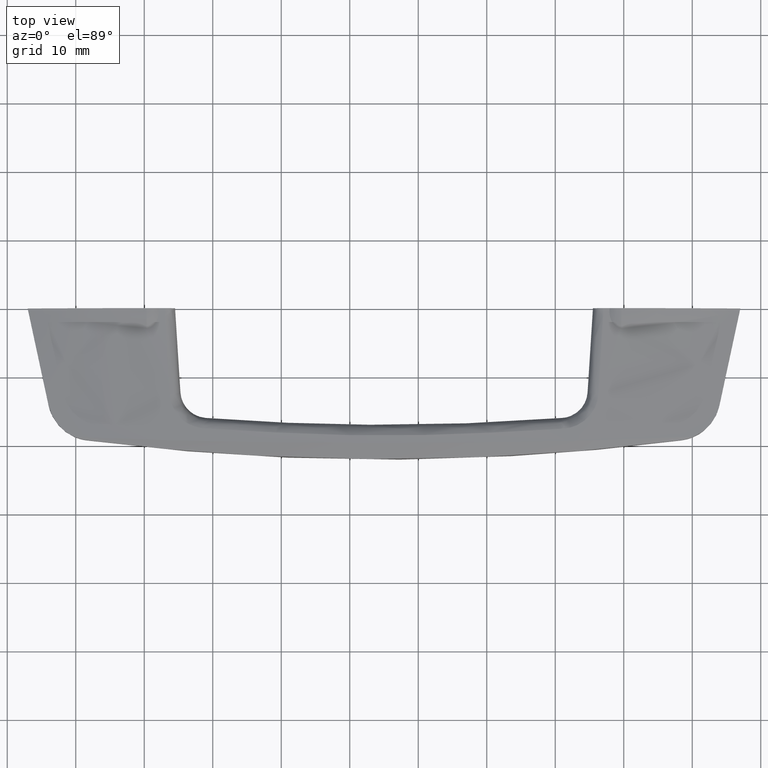
[diagram: clean part render]
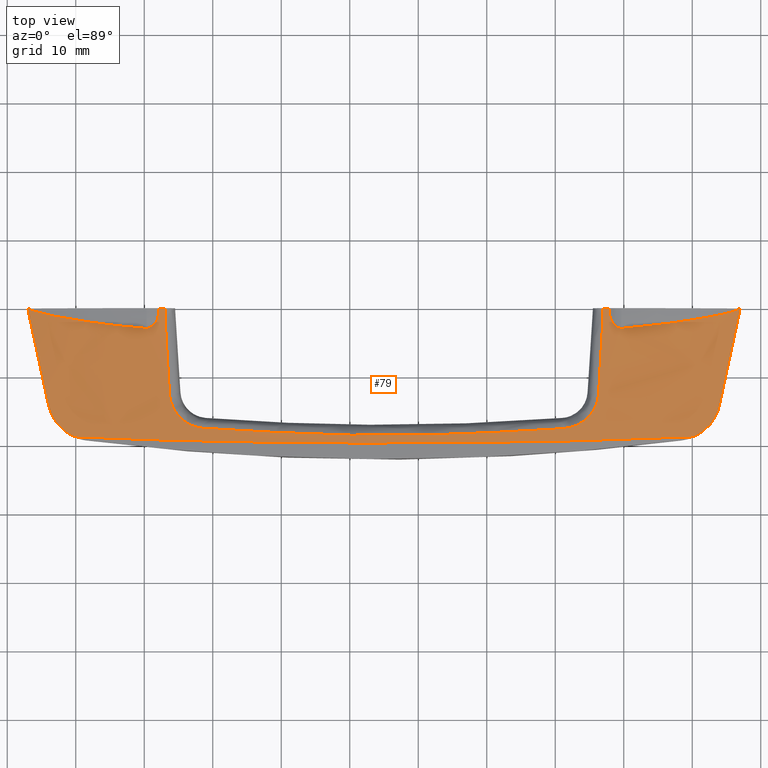
[diagram: same view with one face highlighted and labeled with its STEP entity id]
A machine part, top view. The second image highlights one B-rep face of the part: STEP entity #79.
In plain terms, the highlighted face is a freeform B-spline surface patch.
Its self-contained STEP definition (entity closure, byte-faithful):
#79=ADVANCED_FACE('',(#479),#478,.F.);
#478=( BOUNDED_SURFACE() B_SPLINE_SURFACE( 3,3,((#1942,#1943,#1944,#1945,#1946),(#1947,#1948,#1949,#1950,#1951),(#1952,#1953,#1954,#1955,#1956),(#1957,#1958,#1959,#1960,#1961),(#1962,#1963,#1964,#1965,#1966),(#1967,#1968,#1969,#1970,#1971),(#1972,#1973,#1974,#1975,#1976),(#1977,#1978,#1979,#1980,#1981),(#1982,#1983,#1984,#1985,#1986),(#1987,#1988,#1989,#1990,#1991),(#1992,#1993,#1994,#1995,#1996),(#1997,#1998,#1999,#2000,#2001),(#2002,#2003,#2004,#2005,#2006)), .UNSPECIFIED.,.F.,.F.,.F.) B_SPLINE_SURFACE_WITH_KNOTS((4,1,1,2,1,2,1,1,4),(4,1,4),(0.00000000000E+00,5.81322087955E-01,1.17760890774E+01,2.29708560668E+01,5.87135128041E+01,9.44561695414E+01,1.05650955787E+02,1.16845742032E+02,1.17427064366E+02),(0.00000000000E+00,1.75147510014E+01,2.03932635902E+01), .UNSPECIFIED. ) GEOMETRIC_REPRESENTATION_ITEM() RATIONAL_B_SPLINE_SURFACE(((1.00000000000E+00,1.00000000000E+00,1.00000000000E+00,1.00000000000E+00,1.00000000000E+00),(1.00000000000E+00,1.00000000000E+00,1.00000000000E+00,1.00000000000E+00,1.00000000000E+00),(1.00000000000E+00,1.00000000000E+00,1.00000000000E+00,1.00000000000E+00,1.00000000000E+00),(1.00000000000E+00,1.00000000000E+00,1.00000000000E+00,1.00000000000E+00,1.00000000000E+00),(1.00000000000E+00,1.00000000000E+00,1.00000000000E+00,1.00000000000E+00,1.00000000000E+00),(1.00000000000E+00,1.00000000000E+00,1.00000000000E+00,1.00000000000E+00,1.00000000000E+00),(1.00000000000E+00,1.00000000000E+00,1.00000000000E+00,1.00000000000E+00,1.00000000000E+00),(1.00000000000E+00,1.00000000000E+00,1.00000000000E+00,1.00000000000E+00,1.00000000000E+00),(1.00000000000E+00,1.00000000000E+00,1.00000000000E+00,1.00000000000E+00,1.00000000000E+00),(1.00000000000E+00,1.00000000000E+00,1.00000000000E+00,1.00000000000E+00,1.00000000000E+00),(1.00000000000E+00,1.00000000000E+00,1.00000000000E+00,1.00000000000E+00,1.00000000000E+00),(1.00000000000E+00,1.00000000000E+00,1.00000000000E+00,1.00000000000E+00,1.00000000000E+00),(1.00000000000E+00,1.00000000000E+00,1.00000000000E+00,1.00000000000E+00,1.00000000000E+00))) REPRESENTATION_ITEM('') SURFACE() );
#479=FACE_OUTER_BOUND('',#2007,.T.);
#1942=CARTESIAN_POINT('',(-1.75709070611E+01,9.85301707343E-02,1.34640938471E+00));
#1943=CARTESIAN_POINT('',(-1.63190871553E+01,-5.60329756354E+00,1.26112157011E+00));
#1944=CARTESIAN_POINT('',(-1.48615559343E+01,-1.22422561771E+01,1.16200827869E+00));
#1945=CARTESIAN_POINT('',(-1.33994703610E+01,-1.88716780239E+01,1.02442793776E+00));
#1946=CARTESIAN_POINT('',(-1.31930484483E+01,-1.98073209191E+01,1.00460059923E+00));
#1947=CARTESIAN_POINT('',(-1.73874184608E+01,9.85301707343E-02,1.39797205913E+00));
#1948=CARTESIAN_POINT('',(-1.61441196992E+01,-5.60329756354E+00,1.29925226782E+00));
#1949=CARTESIAN_POINT('',(-1.46964993368E+01,-1.22422561771E+01,1.18443589564E+00));
#1950=CARTESIAN_POINT('',(-1.32464786982E+01,-1.88716780239E+01,1.04393221165E+00));
#1951=CARTESIAN_POINT('',(-1.30417825918E+01,-1.98073209191E+01,1.02382774104E+00));
#1952=CARTESIAN_POINT('',(-1.36862219043E+01,9.85301707343E-02,2.45972669533E+00));
#1953=CARTESIAN_POINT('',(-1.26088620121E+01,-5.60329756354E+00,2.08251052256E+00));
#1954=CARTESIAN_POINT('',(-1.13542197263E+01,-1.22422561771E+01,1.64210457344E+00));
#1955=CARTESIAN_POINT('',(-1.01439047933E+01,-1.88716780239E+01,1.44188871670E+00));
#1956=CARTESIAN_POINT('',(-9.97353862140E+00,-1.98073209191E+01,1.41617485126E+00));
#1957=CARTESIAN_POINT('',(-6.04038117574E+00,9.85301707343E-02,4.06168475945E+00));
#1958=CARTESIAN_POINT('',(-5.46653193504E+00,-5.60329756354E+00,3.31542364251E+00));
#1959=CARTESIAN_POINT('',(-4.79810464183E+00,-1.22422561771E+01,2.44368764074E+00));
#1960=CARTESIAN_POINT('',(-4.18336605636E+00,-1.88716780239E+01,2.14041295712E+00));
#1961=CARTESIAN_POINT('',(-4.09716484075E+00,-1.98073209191E+01,2.10363284529E+00));
#1962=CARTESIAN_POINT('',(1.29743731545E+00,9.85301707343E-02,4.51162864298E+00));
#1963=CARTESIAN_POINT('',(1.43250947004E+00,-5.60329756354E+00,3.83640422447E+00));
#1964=CARTESIAN_POINT('',(1.58985948612E+00,-1.22422561771E+01,3.04800433144E+00));
#1965=CARTESIAN_POINT('',(1.73132473868E+00,-1.88716780239E+01,2.70251747329E+00));
#1966=CARTESIAN_POINT('',(1.75112416330E+00,-1.98073209191E+01,2.65844796927E+00));
#1967=CARTESIAN_POINT('',(1.55767373364E+01,9.85301707343E-02,4.50301097529E+00));
#1968=CARTESIAN_POINT('',(1.52665471781E+01,-5.60329756354E+00,4.32876562018E+00));
#1969=CARTESIAN_POINT('',(1.49054526003E+01,-1.22422561771E+01,4.12662922859E+00));
#1970=CARTESIAN_POINT('',(1.45293483148E+01,-1.88716780239E+01,3.77459688572E+00));
#1971=CARTESIAN_POINT('',(1.44761019899E+01,-1.98073209191E+01,3.72331817633E+00));
#1972=CARTESIAN_POINT('',(3.49999330642E+01,9.85301707343E-02,4.49655179562E+00));
#1973=CARTESIAN_POINT('',(3.49999675419E+01,-5.60329756354E+00,4.69608313785E+00));
#1974=CARTESIAN_POINT('',(3.50000078769E+01,-1.22422561771E+01,4.93090573286E+00));
#1975=CARTESIAN_POINT('',(3.50000098385E+01,-1.88716780239E+01,4.66353850046E+00));
#1976=CARTESIAN_POINT('',(3.50000097086E+01,-1.98073209191E+01,4.62047505906E+00));
#1977=CARTESIAN_POINT('',(5.44231453314E+01,9.85301707343E-02,4.50301098096E+00));
#1978=CARTESIAN_POINT('',(5.47333929032E+01,-5.60329756354E+00,4.32876529785E+00));
#1979=CARTESIAN_POINT('',(5.50945546472E+01,-1.22422561771E+01,4.12662852244E+00));
#1980=CARTESIAN_POINT('',(5.54706624144E+01,-1.88716780239E+01,3.77459618146E+00));
#1981=CARTESIAN_POINT('',(5.55239085556E+01,-1.98073209191E+01,3.72331747644E+00));
#1982=CARTESIAN_POINT('',(6.87024729201E+01,9.85301707343E-02,4.51162864259E+00));
#1983=CARTESIAN_POINT('',(6.85674428965E+01,-5.60329756354E+00,3.83640412230E+00));
#1984=CARTESIAN_POINT('',(6.84101421673E+01,-1.22422561771E+01,3.04800411016E+00));
#1985=CARTESIAN_POINT('',(6.82686796041E+01,-1.88716780239E+01,2.70251725342E+00));
#1986=CARTESIAN_POINT('',(6.82488800650E+01,-1.98073209191E+01,2.65844775087E+00));
#1987=CARTESIAN_POINT('',(7.60403264520E+01,9.85301707343E-02,4.06168149306E+00));
#1988=CARTESIAN_POINT('',(7.54665033819E+01,-5.60329756354E+00,3.31542176190E+00));
#1989=CARTESIAN_POINT('',(7.47981067046E+01,-1.22422561771E+01,2.44368738122E+00));
#1990=CARTESIAN_POINT('',(7.41833697515E+01,-1.88716780239E+01,2.14041279754E+00));
#1991=CARTESIAN_POINT('',(7.40971684590E+01,-1.98073209191E+01,2.10363268369E+00));
#1992=CARTESIAN_POINT('',(8.36862071774E+01,9.85301707343E-02,2.45970728113E+00));
#1993=CARTESIAN_POINT('',(8.26088538642E+01,-5.60329756354E+00,2.08249996599E+00));
#1994=CARTESIAN_POINT('',(8.13542192747E+01,-1.22422561771E+01,1.64210437888E+00));
#1995=CARTESIAN_POINT('',(8.01439047980E+01,-1.88716780239E+01,1.44188910583E+00));
#1996=CARTESIAN_POINT('',(7.99735386138E+01,-1.98073209191E+01,1.41617521911E+00));
#1997=CARTESIAN_POINT('',(8.73874195907E+01,9.85301707343E-02,1.39794281126E+00));
#1998=CARTESIAN_POINT('',(8.61441201204E+01,-5.60329756354E+00,1.29923636864E+00));
#1999=CARTESIAN_POINT('',(8.46964989288E+01,-1.22422561771E+01,1.18443561232E+00));
#2000=CARTESIAN_POINT('',(8.32464782727E+01,-1.88716780239E+01,1.04393280683E+00));
#2001=CARTESIAN_POINT('',(8.30417821725E+01,-1.98073209191E+01,1.02382830396E+00));
#2002=CARTESIAN_POINT('',(8.75709087628E+01,9.85301707343E-02,1.34637971965E+00));
#2003=CARTESIAN_POINT('',(8.63190877896E+01,-5.60329756354E+00,1.26110545686E+00));
#2004=CARTESIAN_POINT('',(8.48615553198E+01,-1.22422561771E+01,1.16200801893E+00));
#2005=CARTESIAN_POINT('',(8.33994697203E+01,-1.88716780239E+01,1.02442856730E+00));
#2006=CARTESIAN_POINT('',(8.31930478169E+01,-1.98073209191E+01,1.00460119563E+00));
#2007=EDGE_LOOP('',(#2289,#2290,#2291,#2292,#2293,#2294,#2295,#2296,#2297,#2298,#2299,#2300,#2301,#2302,#2303,#2304,#2305,#2306,#2307,#2308,#2309,#2310,#2311,#2312,#2313,#2314,#2315,#2316,#2317,#2318));
#2289=ORIENTED_EDGE('',*,*,#2394,.F.);
#2290=ORIENTED_EDGE('',*,*,#2393,.F.);
#2291=ORIENTED_EDGE('',*,*,#2392,.F.);
#2292=ORIENTED_EDGE('',*,*,#2405,.F.);
#2293=ORIENTED_EDGE('',*,*,#2408,.F.);
#2294=ORIENTED_EDGE('',*,*,#2410,.F.);
#2295=ORIENTED_EDGE('',*,*,#2401,.F.);
#2296=ORIENTED_EDGE('',*,*,#2400,.F.);
#2297=ORIENTED_EDGE('',*,*,#2399,.F.);
#2298=ORIENTED_EDGE('',*,*,#2475,.F.);
#2299=ORIENTED_EDGE('',*,*,#2353,.F.);
#2300=ORIENTED_EDGE('',*,*,#2362,.F.);
#2301=ORIENTED_EDGE('',*,*,#2361,.T.);
#2302=ORIENTED_EDGE('',*,*,#2476,.F.);
#2303=ORIENTED_EDGE('',*,*,#2452,.T.);
#2304=ORIENTED_EDGE('',*,*,#2460,.T.);
#2305=ORIENTED_EDGE('',*,*,#2444,.F.);
#2306=ORIENTED_EDGE('',*,*,#2463,.T.);
#2307=ORIENTED_EDGE('',*,*,#2454,.F.);
#2308=ORIENTED_EDGE('',*,*,#2481,.F.);
#2309=ORIENTED_EDGE('',*,*,#2368,.F.);
#2310=ORIENTED_EDGE('',*,*,#2367,.F.);
#2311=ORIENTED_EDGE('',*,*,#2365,.F.);
#2312=ORIENTED_EDGE('',*,*,#2480,.F.);
#2313=ORIENTED_EDGE('',*,*,#2387,.F.);
#2314=ORIENTED_EDGE('',*,*,#2386,.T.);
#2315=ORIENTED_EDGE('',*,*,#2391,.T.);
#2316=ORIENTED_EDGE('',*,*,#2420,.T.);
#2317=ORIENTED_EDGE('',*,*,#2419,.T.);
#2318=ORIENTED_EDGE('',*,*,#2395,.F.);
#2353=EDGE_CURVE('',#2491,#2499,#2500,.T.);
#2361=EDGE_CURVE('',#2554,#2555,#2556,.T.);
#2362=EDGE_CURVE('',#2554,#2491,#2562,.T.);
#2365=EDGE_CURVE('',#2574,#2582,#2583,.T.);
#2367=EDGE_CURVE('',#2582,#2595,#2596,.T.);
#2368=EDGE_CURVE('',#2595,#2602,#2603,.T.);
#2386=EDGE_CURVE('',#2726,#2719,#2727,.T.);
#2387=EDGE_CURVE('',#2726,#2733,#2734,.T.);
#2391=EDGE_CURVE('',#2719,#2753,#2760,.T.);
#2392=EDGE_CURVE('',#2766,#2767,#2768,.T.);
#2393=EDGE_CURVE('',#2767,#2774,#2775,.T.);
#2394=EDGE_CURVE('',#2774,#2781,#2782,.T.);
#2395=EDGE_CURVE('',#2781,#2788,#2789,.T.);
#2399=EDGE_CURVE('',#2815,#2816,#2817,.T.);
#2400=EDGE_CURVE('',#2816,#2823,#2824,.T.);
#2401=EDGE_CURVE('',#2823,#2830,#2831,.T.);
#2405=EDGE_CURVE('',#2857,#2766,#2858,.T.);
#2408=EDGE_CURVE('',#2871,#2857,#2878,.T.);
#2410=EDGE_CURVE('',#2830,#2871,#2890,.T.);
#2419=EDGE_CURVE('',#2951,#2788,#2952,.T.);
#2420=EDGE_CURVE('',#2753,#2951,#2958,.T.);
#2444=EDGE_CURVE('',#3115,#3122,#3123,.T.);
#2452=EDGE_CURVE('',#3174,#3167,#3175,.T.);
#2454=EDGE_CURVE('',#3187,#3188,#3189,.T.);
#2460=EDGE_CURVE('',#3167,#3122,#3227,.T.);
#2463=EDGE_CURVE('',#3115,#3188,#3245,.T.);
#2475=EDGE_CURVE('',#2499,#2815,#3319,.T.);
#2476=EDGE_CURVE('',#3174,#2555,#3325,.T.);
#2480=EDGE_CURVE('',#2733,#2574,#3352,.T.);
#2481=EDGE_CURVE('',#2602,#3187,#3358,.T.);
#2491=VERTEX_POINT('',#3422);
#2499=VERTEX_POINT('',#3428);
#2500=(BOUNDED_CURVE() B_SPLINE_CURVE(3,(#3429,#3430,#3431,#3432,#3433,#3434,#3435,#3436,#3437,#3438,#3439,#3440,#3441,#3442,#3443,#3444,#3445,#3446,#3447,#3448,#3449,#3450,#3451,#3452,#3453,#3454,#3455,#3456,#3457,#3458),.UNSPECIFIED.,.F.,.F.) B_SPLINE_CURVE_WITH_KNOTS((4,2,2,2,2,2,2,2,2,2,2,2,2,2,4),(0.00000000000E+00,1.25000000000E-01,1.56250000000E-01,1.87500000000E-01,2.50000000000E-01,3.12500000000E-01,3.43750000000E-01,3.75000000000E-01,5.00000000000E-01,5.62500000000E-01,6.25000000000E-01,7.50000000000E-01,8.12500000000E-01,8.75000000000E-01,1.00000000000E+00),.UNSPECIFIED.) CURVE() GEOMETRIC_REPRESENTATION_ITEM() RATIONAL_B_SPLINE_CURVE((1.00000000000E+00,1.00000000000E+00,1.00000000000E+00,1.00000000000E+00,1.00000000000E+00,1.00000000000E+00,1.00000000000E+00,1.00000000000E+00,1.00000000000E+00,1.00000000000E+00,1.00000000000E+00,1.00000000000E+00,1.00000000000E+00,1.00000000000E+00,1.00000000000E+00,1.00000000000E+00,1.00000000000E+00,1.00000000000E+00,1.00000000000E+00,1.00000000000E+00,1.00000000000E+00,1.00000000000E+00,1.00000000000E+00,1.00000000000E+00,1.00000000000E+00,1.00000000000E+00,1.00000000000E+00,1.00000000000E+00,1.00000000000E+00,1.00000000000E+00)) REPRESENTATION_ITEM('') );
#2554=VERTEX_POINT('',#3525);
#2555=VERTEX_POINT('',#3526);
#2556=CIRCLE('',#3530,1.61764377646E+00);
#2562=(BOUNDED_CURVE() B_SPLINE_CURVE(3,(#3531,#3532,#3533,#3534,#3535,#3536,#3537,#3538,#3539,#3540,#3541,#3542,#3543,#3544,#3545,#3546,#3547,#3548,#3549,#3550,#3551,#3552,#3553,#3554,#3555,#3556,#3557,#3558,#3559,#3560),.UNSPECIFIED.,.F.,.F.) B_SPLINE_CURVE_WITH_KNOTS((4,2,2,2,2,2,2,2,2,2,2,2,2,2,4),(0.00000000000E+00,7.81250000000E-03,1.56250000000E-02,3.12500000000E-02,6.25000000000E-02,9.37500000000E-02,1.25000000000E-01,1.87500000000E-01,2.50000000000E-01,3.75000000000E-01,5.00000000000E-01,6.25000000000E-01,7.50000000000E-01,8.75000000000E-01,1.00000000000E+00),.UNSPECIFIED.) CURVE() GEOMETRIC_REPRESENTATION_ITEM() RATIONAL_B_SPLINE_CURVE((1.00000000000E+00,1.00000000000E+00,1.00000000000E+00,1.00000000000E+00,1.00000000000E+00,1.00000000000E+00,1.00000000000E+00,1.00000000000E+00,1.00000000000E+00,1.00000000000E+00,1.00000000000E+00,1.00000000000E+00,1.00000000000E+00,1.00000000000E+00,1.00000000000E+00,1.00000000000E+00,1.00000000000E+00,1.00000000000E+00,1.00000000000E+00,1.00000000000E+00,1.00000000000E+00,1.00000000000E+00,1.00000000000E+00,1.00000000000E+00,1.00000000000E+00,1.00000000000E+00,1.00000000000E+00,1.00000000000E+00,1.00000000000E+00,1.00000000000E+00)) REPRESENTATION_ITEM('') );
#2574=VERTEX_POINT('',#3565);
#2582=VERTEX_POINT('',#3571);
#2583=(BOUNDED_CURVE() B_SPLINE_CURVE(3,(#3572,#3573,#3574,#3575,#3576,#3577,#3578,#3579,#3580,#3581,#3582,#3583,#3584,#3585,#3586,#3587,#3588,#3589,#3590,#3591,#3592,#3593,#3594,#3595,#3596,#3597,#3598,#3599,#3600,#3601),.UNSPECIFIED.,.F.,.F.) B_SPLINE_CURVE_WITH_KNOTS((4,2,2,2,2,2,2,2,2,2,2,2,2,2,4),(0.00000000000E+00,1.25000000000E-01,2.50000000000E-01,3.12500000000E-01,3.75000000000E-01,5.00000000000E-01,5.62500000000E-01,5.93750000000E-01,6.25000000000E-01,7.50000000000E-01,7.81250000000E-01,8.12500000000E-01,8.75000000000E-01,9.37500000000E-01,1.00000000000E+00),.UNSPECIFIED.) CURVE() GEOMETRIC_REPRESENTATION_ITEM() RATIONAL_B_SPLINE_CURVE((1.00000000000E+00,1.00000000000E+00,1.00000000000E+00,1.00000000000E+00,1.00000000000E+00,1.00000000000E+00,1.00000000000E+00,1.00000000000E+00,1.00000000000E+00,1.00000000000E+00,1.00000000000E+00,1.00000000000E+00,1.00000000000E+00,1.00000000000E+00,1.00000000000E+00,1.00000000000E+00,1.00000000000E+00,1.00000000000E+00,1.00000000000E+00,1.00000000000E+00,1.00000000000E+00,1.00000000000E+00,1.00000000000E+00,1.00000000000E+00,1.00000000000E+00,1.00000000000E+00,1.00000000000E+00,1.00000000000E+00,1.00000000000E+00,1.00000000000E+00)) REPRESENTATION_ITEM('') );
#2595=VERTEX_POINT('',#3606);
#2596=(BOUNDED_CURVE() B_SPLINE_CURVE(3,(#3607,#3608,#3609,#3610,#3611,#3612,#3613,#3614,#3615,#3616,#3617,#3618,#3619,#3620,#3621,#3622,#3623,#3624,#3625,#3626,#3627,#3628,#3629,#3630,#3631,#3632,#3633,#3634,#3635,#3636,#3637,#3638),.UNSPECIFIED.,.F.,.F.) B_SPLINE_CURVE_WITH_KNOTS((4,2,2,2,2,2,2,2,2,2,2,2,2,2,2,4),(0.00000000000E+00,1.25000000000E-01,2.50000000000E-01,3.75000000000E-01,5.00000000000E-01,5.62500000000E-01,6.25000000000E-01,7.50000000000E-01,8.12500000000E-01,8.75000000000E-01,9.06250000000E-01,9.37500000000E-01,9.68750000000E-01,9.84375000000E-01,9.92187500000E-01,1.00000000000E+00),.UNSPECIFIED.) CURVE() GEOMETRIC_REPRESENTATION_ITEM() RATIONAL_B_SPLINE_CURVE((1.00000000000E+00,1.00000000000E+00,1.00000000000E+00,1.00000000000E+00,1.00000000000E+00,1.00000000000E+00,1.00000000000E+00,1.00000000000E+00,1.00000000000E+00,1.00000000000E+00,1.00000000000E+00,1.00000000000E+00,1.00000000000E+00,1.00000000000E+00,1.00000000000E+00,1.00000000000E+00,1.00000000000E+00,1.00000000000E+00,1.00000000000E+00,1.00000000000E+00,1.00000000000E+00,1.00000000000E+00,1.00000000000E+00,1.00000000000E+00,1.00000000000E+00,1.00000000000E+00,1.00000000000E+00,1.00000000000E+00,1.00000000000E+00,1.00000000000E+00,1.00000000000E+00,1.00000000000E+00)) REPRESENTATION_ITEM('') );
#2602=VERTEX_POINT('',#3639);
#2603=CIRCLE('',#3643,1.61759582762E+00);
#2719=VERTEX_POINT('',#3834);
#2726=VERTEX_POINT('',#3842);
#2727=(BOUNDED_CURVE() B_SPLINE_CURVE(3,(#3843,#3844,#3845,#3846,#3847,#3848,#3849,#3850),.UNSPECIFIED.,.F.,.F.) B_SPLINE_CURVE_WITH_KNOTS((4,1,1,1,1,4),(0.00000000000E+00,2.30783472526E-01,4.46181725367E-01,6.46178192588E-01,8.30777687977E-01,1.00000000000E+00),.UNSPECIFIED.) CURVE() GEOMETRIC_REPRESENTATION_ITEM() RATIONAL_B_SPLINE_CURVE((1.00000000000E+00,1.00000000000E+00,1.00000000000E+00,1.00000000000E+00,1.00000000000E+00,1.00000000000E+00,1.00000000000E+00,1.00000000000E+00)) REPRESENTATION_ITEM('') );
#2733=VERTEX_POINT('',#3851);
#2734=(BOUNDED_CURVE() B_SPLINE_CURVE(3,(#3852,#3853,#3854,#3855,#3856,#3857),.UNSPECIFIED.,.F.,.F.) B_SPLINE_CURVE_WITH_KNOTS((4,2,4),(0.00000000000E+00,5.00000000000E-01,1.00000000000E+00),.UNSPECIFIED.) CURVE() GEOMETRIC_REPRESENTATION_ITEM() RATIONAL_B_SPLINE_CURVE((1.00000000000E+00,1.00000000000E+00,1.00000000000E+00,1.00000000000E+00,1.00000000000E+00,1.00000000000E+00)) REPRESENTATION_ITEM('') );
#2753=VERTEX_POINT('',#3882);
#2760=(BOUNDED_CURVE() B_SPLINE_CURVE(3,(#3890,#3891,#3892,#3893,#3894,#3895,#3896,#3897,#3898,#3899,#3900,#3901,#3902,#3903,#3904,#3905,#3906,#3907),.UNSPECIFIED.,.F.,.F.) B_SPLINE_CURVE_WITH_KNOTS((4,1,1,1,1,1,1,1,1,1,1,1,1,1,1,4),(0.00000000000E+00,5.03731390365E-02,1.00581435910E-01,1.50670875475E-01,2.00687356307E-01,2.50676577735E-01,3.00683930623E-01,3.50754393346E-01,4.00932434308E-01,4.51261922185E-01,5.01786044940E-01,6.02422880606E-01,7.02207149202E-01,8.01491709597E-01,9.00635327759E-01,1.00000000000E+00),.UNSPECIFIED.) CURVE() GEOMETRIC_REPRESENTATION_ITEM() RATIONAL_B_SPLINE_CURVE((1.00000000000E+00,1.00000000000E+00,1.00000000000E+00,1.00000000000E+00,1.00000000000E+00,1.00000000000E+00,1.00000000000E+00,1.00000000000E+00,1.00000000000E+00,1.00000000000E+00,1.00000000000E+00,1.00000000000E+00,1.00000000000E+00,1.00000000000E+00,1.00000000000E+00,1.00000000000E+00,1.00000000000E+00,1.00000000000E+00)) REPRESENTATION_ITEM('') );
#2766=VERTEX_POINT('',#3908);
#2767=VERTEX_POINT('',#3909);
#2768=(BOUNDED_CURVE() B_SPLINE_CURVE(3,(#3910,#3911,#3912,#3913,#3914,#3915),.UNSPECIFIED.,.F.,.F.) B_SPLINE_CURVE_WITH_KNOTS((4,1,1,4),(0.00000000000E+00,6.66663832931E-01,8.33337506652E-01,9.99988201256E-01),.UNSPECIFIED.) CURVE() GEOMETRIC_REPRESENTATION_ITEM() RATIONAL_B_SPLINE_CURVE((1.00000000000E+00,1.00000000000E+00,1.00000000000E+00,1.00000000000E+00,1.00000000000E+00,1.00000000000E+00)) REPRESENTATION_ITEM('') );
#2774=VERTEX_POINT('',#3916);
#2775=(BOUNDED_CURVE() B_SPLINE_CURVE(3,(#3917,#3918,#3919,#3920,#3921,#3922,#3923,#3924,#3925,#3926,#3927,#3928,#3929),.UNSPECIFIED.,.F.,.F.) B_SPLINE_CURVE_WITH_KNOTS((4,1,1,1,1,1,1,1,1,1,4),(4.02986800000E-09,9.98712303242E-02,1.99811213739E-01,2.99797675252E-01,3.99818823156E-01,4.99862642899E-01,5.99916247646E-01,6.99967491922E-01,8.00004521033E-01,9.00015630081E-01,9.99989331180E-01),.UNSPECIFIED.) CURVE() GEOMETRIC_REPRESENTATION_ITEM() RATIONAL_B_SPLINE_CURVE((1.00000000000E+00,1.00000000000E+00,1.00000000000E+00,1.00000000000E+00,1.00000000000E+00,1.00000000000E+00,1.00000000000E+00,1.00000000000E+00,1.00000000000E+00,1.00000000000E+00,1.00000000000E+00,1.00000000000E+00,1.00000000000E+00)) REPRESENTATION_ITEM('') );
#2781=VERTEX_POINT('',#3930);
#2782=(BOUNDED_CURVE() B_SPLINE_CURVE(3,(#3931,#3932,#3933,#3934,#3935),.UNSPECIFIED.,.F.,.F.) B_SPLINE_CURVE_WITH_KNOTS((4,1,4),(0.00000000000E+00,3.33333187222E-01,9.99996854795E-01),.UNSPECIFIED.) CURVE() GEOMETRIC_REPRESENTATION_ITEM() RATIONAL_B_SPLINE_CURVE((1.00000000000E+00,1.00000000000E+00,1.00000000000E+00,1.00000000000E+00,1.00000000000E+00)) REPRESENTATION_ITEM('') );
#2788=VERTEX_POINT('',#3936);
#2789=CIRCLE('',#3940,3.83885179701E+02);
#2815=VERTEX_POINT('',#3989);
#2816=VERTEX_POINT('',#3990);
#2817=(BOUNDED_CURVE() B_SPLINE_CURVE(3,(#3991,#3992,#3993,#3994),.UNSPECIFIED.,.F.,.F.) B_SPLINE_CURVE_WITH_KNOTS((4,4),(0.00000000000E+00,1.00000000000E+00),.UNSPECIFIED.) CURVE() GEOMETRIC_REPRESENTATION_ITEM() RATIONAL_B_SPLINE_CURVE((1.00000000000E+00,1.00000000000E+00,1.00000000000E+00,1.00000000000E+00)) REPRESENTATION_ITEM('') );
#2823=VERTEX_POINT('',#3995);
#2824=LINE('',#3996,#3997);
#2830=VERTEX_POINT('',#3999);
#2831=(BOUNDED_CURVE() B_SPLINE_CURVE(3,(#4000,#4001,#4002,#4003,#4004,#4005,#4006,#4007,#4008,#4009,#4010,#4011),.UNSPECIFIED.,.F.,.F.) B_SPLINE_CURVE_WITH_KNOTS((4,1,1,1,1,1,1,1,1,4),(0.00000000000E+00,1.29764116930E-01,2.54870880377E-01,3.75314444192E-01,4.91091504134E-01,6.02200971969E-01,7.08643637867E-01,8.10421836319E-01,9.07539127152E-01,1.00000000000E+00),.UNSPECIFIED.) CURVE() GEOMETRIC_REPRESENTATION_ITEM() RATIONAL_B_SPLINE_CURVE((1.00000000000E+00,1.00000000000E+00,1.00000000000E+00,1.00000000000E+00,1.00000000000E+00,1.00000000000E+00,1.00000000000E+00,1.00000000000E+00,1.00000000000E+00,1.00000000000E+00,1.00000000000E+00,1.00000000000E+00)) REPRESENTATION_ITEM('') );
#2857=VERTEX_POINT('',#4033);
#2858=(BOUNDED_CURVE() B_SPLINE_CURVE(3,(#4034,#4035,#4036,#4037),.UNSPECIFIED.,.F.,.F.) B_SPLINE_CURVE_WITH_KNOTS((4,4),(0.00000000000E+00,9.99788697852E-01),.UNSPECIFIED.) CURVE() GEOMETRIC_REPRESENTATION_ITEM() RATIONAL_B_SPLINE_CURVE((1.00000000000E+00,1.00000000000E+00,1.00000000000E+00,1.00000000000E+00)) REPRESENTATION_ITEM('') );
#2871=VERTEX_POINT('',#4062);
#2878=(BOUNDED_CURVE() B_SPLINE_CURVE(3,(#4073,#4074,#4075,#4076,#4077,#4078,#4079,#4080,#4081,#4082,#4083,#4084,#4085,#4086,#4087,#4088),.UNSPECIFIED.,.F.,.F.) B_SPLINE_CURVE_WITH_KNOTS((4,1,1,1,1,1,1,1,1,1,1,1,1,4),(5.08583972590E-05,7.70482933853E-02,1.53768513585E-01,2.30282519585E-01,3.06662127346E-01,3.82979795020E-01,4.59308441356E-01,5.35721258074E-01,6.12291518787E-01,6.89092387100E-01,7.66196726564E-01,8.43676915046E-01,9.21604665944E-01,1.00000000000E+00),.UNSPECIFIED.) CURVE() GEOMETRIC_REPRESENTATION_ITEM() RATIONAL_B_SPLINE_CURVE((1.00000000000E+00,1.00000000000E+00,1.00000000000E+00,1.00000000000E+00,1.00000000000E+00,1.00000000000E+00,1.00000000000E+00,1.00000000000E+00,1.00000000000E+00,1.00000000000E+00,1.00000000000E+00,1.00000000000E+00,1.00000000000E+00,1.00000000000E+00,1.00000000000E+00,1.00000000000E+00)) REPRESENTATION_ITEM('') );
#2890=(BOUNDED_CURVE() B_SPLINE_CURVE(3,(#4109,#4110,#4111,#4112,#4113,#4114,#4115,#4116,#4117,#4118,#4119,#4120,#4121,#4122,#4123,#4124,#4125,#4126),.UNSPECIFIED.,.F.,.F.) B_SPLINE_CURVE_WITH_KNOTS((4,1,1,1,1,1,1,1,1,1,1,1,1,1,1,4),(0.00000000000E+00,1.00303105208E-01,2.00014728888E-01,2.99494220882E-01,3.99097588018E-01,4.99174294259E-01,5.49735555842E-01,6.00070588968E-01,6.50223738866E-01,7.00239791511E-01,7.50163893929E-01,8.00041471226E-01,8.49918141394E-01,8.99839628938E-01,9.49851678499E-01,9.99999951108E-01),.UNSPECIFIED.) CURVE() GEOMETRIC_REPRESENTATION_ITEM() RATIONAL_B_SPLINE_CURVE((1.00000000000E+00,1.00000000000E+00,1.00000000000E+00,1.00000000000E+00,1.00000000000E+00,1.00000000000E+00,1.00000000000E+00,1.00000000000E+00,1.00000000000E+00,1.00000000000E+00,1.00000000000E+00,1.00000000000E+00,1.00000000000E+00,1.00000000000E+00,1.00000000000E+00,1.00000000000E+00,1.00000000000E+00,1.00000000000E+00)) REPRESENTATION_ITEM('') );
#2951=VERTEX_POINT('',#4186);
#2952=LINE('',#4187,#4188);
#2958=(BOUNDED_CURVE() B_SPLINE_CURVE(3,(#4190,#4191,#4192,#4193,#4194,#4195,#4196,#4197,#4198,#4199,#4200,#4201,#4202,#4203,#4204,#4205,#4206,#4207,#4208,#4209,#4210,#4211,#4212),.UNSPECIFIED.,.F.,.F.) B_SPLINE_CURVE_WITH_KNOTS((4,1,1,1,1,1,1,1,1,1,1,1,1,1,1,1,1,1,1,1,4),(2.07414549000E-07,3.63682101506E-02,7.25036446451E-02,1.08437255217E-01,1.44200628385E-01,1.79825922404E-01,2.15345797226E-01,2.50793338120E-01,2.86201973801E-01,3.21605390044E-01,3.57037439905E-01,3.92532051788E-01,4.28123136617E-01,4.63844495429E-01,4.99729728662E-01,6.23937288572E-01,7.48489766947E-01,8.07886725273E-01,8.69496583776E-01,9.33484495380E-01,1.00000000000E+00),.UNSPECIFIED.) CURVE() GEOMETRIC_REPRESENTATION_ITEM() RATIONAL_B_SPLINE_CURVE((1.00000000000E+00,1.00000000000E+00,1.00000000000E+00,1.00000000000E+00,1.00000000000E+00,1.00000000000E+00,1.00000000000E+00,1.00000000000E+00,1.00000000000E+00,1.00000000000E+00,1.00000000000E+00,1.00000000000E+00,1.00000000000E+00,1.00000000000E+00,1.00000000000E+00,1.00000000000E+00,1.00000000000E+00,1.00000000000E+00,1.00000000000E+00,1.00000000000E+00,1.00000000000E+00,1.00000000000E+00,1.00000000000E+00)) REPRESENTATION_ITEM('') );
#3115=VERTEX_POINT('',#4536);
#3122=VERTEX_POINT('',#4543);
#3123=(BOUNDED_CURVE() B_SPLINE_CURVE(3,(#4544,#4545,#4546,#4547,#4548,#4549,#4550,#4551,#4552,#4553,#4554,#4555,#4556,#4557,#4558,#4559,#4560,#4561,#4562,#4563,#4564,#4565,#4566,#4567,#4568,#4569,#4570,#4571,#4572,#4573,#4574,#4575,#4576,#4577,#4578,#4579,#4580,#4581,#4582),.UNSPECIFIED.,.F.,.F.) B_SPLINE_CURVE_WITH_KNOTS((4,2,2,2,2,2,2,1,1,2,2,2,1,1,1,2,2,2,2,2,2,4),(0.00000000000E+00,6.25000000000E-02,1.25000000000E-01,1.56250000000E-01,1.71875000000E-01,1.87500000000E-01,2.50000000000E-01,3.12500000000E-01,3.75000000000E-01,4.37500000000E-01,4.68750000000E-01,5.00000000000E-01,5.62500000000E-01,6.25000000000E-01,6.87500000000E-01,7.50000000000E-01,8.12500000000E-01,8.28125000000E-01,8.43750000000E-01,8.75000000000E-01,9.37500000000E-01,1.00000000000E+00),.UNSPECIFIED.) CURVE() GEOMETRIC_REPRESENTATION_ITEM() RATIONAL_B_SPLINE_CURVE((1.00000000000E+00,1.00000000000E+00,1.00000000000E+00,1.00000000000E+00,1.00000000000E+00,1.00000000000E+00,1.00000000000E+00,1.00000000000E+00,1.00000000000E+00,1.00000000000E+00,1.00000000000E+00,1.00000000000E+00,1.00000000000E+00,1.00000000000E+00,1.00000000000E+00,1.00000000000E+00,1.00000000000E+00,1.00000000000E+00,1.00000000000E+00,1.00000000000E+00,1.00000000000E+00,1.00000000000E+00,1.00000000000E+00,1.00000000000E+00,1.00000000000E+00,1.00000000000E+00,1.00000000000E+00,1.00000000000E+00,1.00000000000E+00,1.00000000000E+00,1.00000000000E+00,1.00000000000E+00,1.00000000000E+00,1.00000000000E+00,1.00000000000E+00,1.00000000000E+00,1.00000000000E+00,1.00000000000E+00,1.00000000000E+00)) REPRESENTATION_ITEM('') );
#3167=VERTEX_POINT('',#4607);
#3174=VERTEX_POINT('',#4611);
#3175=LINE('',#4612,#4613);
#3187=VERTEX_POINT('',#4618);
#3188=VERTEX_POINT('',#4619);
#3189=LINE('',#4620,#4621);
#3227=(BOUNDED_CURVE() B_SPLINE_CURVE(3,(#4664,#4665,#4666,#4667,#4668,#4669,#4670,#4671,#4672,#4673,#4674,#4675,#4676,#4677,#4678,#4679,#4680,#4681,#4682,#4683,#4684,#4685,#4686,#4687,#4688,#4689),.UNSPECIFIED.,.F.,.F.) B_SPLINE_CURVE_WITH_KNOTS((4,2,2,2,2,2,2,2,2,2,2,2,4),(0.00000000000E+00,1.25000000000E-01,2.50000000000E-01,3.12500000000E-01,3.43750000000E-01,3.75000000000E-01,5.00000000000E-01,6.25000000000E-01,6.87500000000E-01,7.18750000000E-01,7.50000000000E-01,8.75000000000E-01,1.00000000000E+00),.UNSPECIFIED.) CURVE() GEOMETRIC_REPRESENTATION_ITEM() RATIONAL_B_SPLINE_CURVE((1.00000000000E+00,1.00000000000E+00,1.00000000000E+00,1.00000000000E+00,1.00000000000E+00,1.00000000000E+00,1.00000000000E+00,1.00000000000E+00,1.00000000000E+00,1.00000000000E+00,1.00000000000E+00,1.00000000000E+00,1.00000000000E+00,1.00000000000E+00,1.00000000000E+00,1.00000000000E+00,1.00000000000E+00,1.00000000000E+00,1.00000000000E+00,1.00000000000E+00,1.00000000000E+00,1.00000000000E+00,1.00000000000E+00,1.00000000000E+00,1.00000000000E+00,1.00000000000E+00)) REPRESENTATION_ITEM('') );
#3245=(BOUNDED_CURVE() B_SPLINE_CURVE(3,(#4717,#4718,#4719,#4720,#4721,#4722,#4723,#4724,#4725,#4726,#4727,#4728,#4729,#4730,#4731,#4732,#4733,#4734,#4735,#4736,#4737,#4738,#4739,#4740),.UNSPECIFIED.,.F.,.F.) B_SPLINE_CURVE_WITH_KNOTS((4,2,2,2,2,2,2,2,2,2,2,4),(0.00000000000E+00,1.25000000000E-01,2.50000000000E-01,3.12500000000E-01,3.43750000000E-01,3.75000000000E-01,5.00000000000E-01,6.25000000000E-01,6.87500000000E-01,7.50000000000E-01,8.75000000000E-01,1.00000000000E+00),.UNSPECIFIED.) CURVE() GEOMETRIC_REPRESENTATION_ITEM() RATIONAL_B_SPLINE_CURVE((1.00000000000E+00,1.00000000000E+00,1.00000000000E+00,1.00000000000E+00,1.00000000000E+00,1.00000000000E+00,1.00000000000E+00,1.00000000000E+00,1.00000000000E+00,1.00000000000E+00,1.00000000000E+00,1.00000000000E+00,1.00000000000E+00,1.00000000000E+00,1.00000000000E+00,1.00000000000E+00,1.00000000000E+00,1.00000000000E+00,1.00000000000E+00,1.00000000000E+00,1.00000000000E+00,1.00000000000E+00,1.00000000000E+00,1.00000000000E+00)) REPRESENTATION_ITEM('') );
#3319=CIRCLE('',#4802,8.00276921667E+01);
#3325=CIRCLE('',#4806,8.03567239314E+01);
#3352=CIRCLE('',#4825,8.00337973354E+01);
#3358=CIRCLE('',#4829,8.03420398262E+01);
#3422=CARTESIAN_POINT('',(3.42183007506E-01,-2.95658249387E+00,4.03219785826E+00));
#3428=CARTESIAN_POINT('',(2.06442893139E+00,0.00000000000E+00,4.45605462107E+00));
#3429=CARTESIAN_POINT('',(3.42183007506E-01,-2.95658249387E+00,4.03219785826E+00));
#3430=CARTESIAN_POINT('',(5.02490065278E-01,-2.93985099489E+00,4.04444773396E+00));
#3431=CARTESIAN_POINT('',(6.55120367265E-01,-2.89897907751E+00,4.05859739161E+00));
#3432=CARTESIAN_POINT('',(8.37432814312E-01,-2.82122196732E+00,4.07833286294E+00));
#3433=CARTESIAN_POINT('',(8.73463905913E-01,-2.80431332714E+00,4.08238466336E+00));
#3434=CARTESIAN_POINT('',(9.44663399548E-01,-2.76778202696E+00,4.09069791650E+00));
#3435=CARTESIAN_POINT('',(9.79724936491E-01,-2.74820047734E+00,4.09494824550E+00));
#3436=CARTESIAN_POINT('',(1.08198217832E+00,-2.68645794963E+00,4.10780116696E+00));
#3437=CARTESIAN_POINT('',(1.14681634571E+00,-2.64103545437E+00,4.11656894811E+00));
#3438=CARTESIAN_POINT('',(1.27038941970E+00,-2.54241077021E+00,4.13448027913E+00));
#3439=CARTESIAN_POINT('',(1.32912483478E+00,-2.48920412694E+00,4.14362405542E+00));
#3440=CARTESIAN_POINT('',(1.41287412762E+00,-2.40383966801E+00,4.15762185642E+00));
#3441=CARTESIAN_POINT('',(1.44009717016E+00,-2.37440690838E+00,4.16234220031E+00));
#3442=CARTESIAN_POINT('',(1.49247508113E+00,-2.31447142387E+00,4.17176125826E+00));
#3443=CARTESIAN_POINT('',(1.51771653560E+00,-2.28388598513E+00,4.17647388330E+00));
#3444=CARTESIAN_POINT('',(1.63945513269E+00,-2.12804660205E+00,4.20005883932E+00));
#3445=CARTESIAN_POINT('',(1.72270393284E+00,-1.99415884793E+00,4.21899587729E+00));
#3446=CARTESIAN_POINT('',(1.82927508758E+00,-1.78142063011E+00,4.24763490804E+00));
#3447=CARTESIAN_POINT('',(1.86179824934E+00,-1.70822953817E+00,4.25725411929E+00));
#3448=CARTESIAN_POINT('',(1.91989628922E+00,-1.56068750791E+00,4.27624953307E+00));
#3449=CARTESIAN_POINT('',(1.94563109634E+00,-1.48607115935E+00,4.28566292487E+00));
#3450=CARTESIAN_POINT('',(2.01369612244E+00,-1.25989545983E+00,4.31370730269E+00));
#3451=CARTESIAN_POINT('',(2.04697387668E+00,-1.10603167221E+00,4.33214506745E+00));
#3452=CARTESIAN_POINT('',(2.08006888805E+00,-8.70970075843E-01,4.35957635604E+00));
#3453=CARTESIAN_POINT('',(2.08828712933E+00,-7.91644862233E-01,4.36871061421E+00));
#3454=CARTESIAN_POINT('',(2.09894430503E+00,-6.32897428986E-01,4.38676962459E+00));
#3455=CARTESIAN_POINT('',(2.10139741111E+00,-5.53600806091E-01,4.39568100623E+00));
#3456=CARTESIAN_POINT('',(2.10028097603E+00,-3.15941016593E-01,4.42209273368E+00));
#3457=CARTESIAN_POINT('',(2.08833542256E+00,-1.57805388839E-01,4.43927597384E+00));
#3458=CARTESIAN_POINT('',(2.06442893139E+00,0.00000000000E+00,4.45605462107E+00));
#3525=CARTESIAN_POINT('',(-1.65773206453E+01,-2.74571606781E-01,1.59417085421E+00));
#3526=CARTESIAN_POINT('',(-1.65772856520E+01,0.00000000000E+00,1.61764375100E+00));
#3527=CARTESIAN_POINT('',(-1.65773031484E+01,1.86958489776E-06,-2.53683329898E-08));
#3528=DIRECTION('',(-9.99999991938E-01,1.26522037330E-04,1.08161166861E-05));
#3529=DIRECTION('',(1.08162611393E-05,1.69736675256E-01,-9.85489452483E-01));
#3530=AXIS2_PLACEMENT_3D('',#3527,#3528,#3529);
#3531=CARTESIAN_POINT('',(-1.65773206453E+01,-2.74571606781E-01,1.59417085421E+00));
#3532=CARTESIAN_POINT('',(-1.65372822123E+01,-2.95689911838E-01,1.60334012264E+00));
#3533=CARTESIAN_POINT('',(-1.64964752392E+01,-3.13704761842E-01,1.61293281924E+00));
#3534=CARTESIAN_POINT('',(-1.64142452114E+01,-3.47298615135E-01,1.63239550814E+00));
#3535=CARTESIAN_POINT('',(-1.63727896837E+01,-3.62744595633E-01,1.64228565489E+00));
#3536=CARTESIAN_POINT('',(-1.62478404303E+01,-4.06825529009E-01,1.67216246629E+00));
#3537=CARTESIAN_POINT('',(-1.61637730909E+01,-4.33240498600E-01,1.69234996933E+00));
#3538=CARTESIAN_POINT('',(-1.59104751534E+01,-5.08504159183E-01,1.75298511814E+00));
#3539=CARTESIAN_POINT('',(-1.57401370803E+01,-5.53323975994E-01,1.79351292141E+00));
#3540=CARTESIAN_POINT('',(-1.53981880407E+01,-6.39064297629E-01,1.87378615823E+00));
#3541=CARTESIAN_POINT('',(-1.52265152694E+01,-6.79731930736E-01,1.91356958472E+00));
#3542=CARTESIAN_POINT('',(-1.48822716929E+01,-7.58674334247E-01,1.99215623996E+00));
#3543=CARTESIAN_POINT('',(-1.47096525372E+01,-7.96913769258E-01,2.03097421176E+00));
#3544=CARTESIAN_POINT('',(-1.41910779824E+01,-9.09101668239E-01,2.14575003289E+00));
#3545=CARTESIAN_POINT('',(-1.38443874100E+01,-9.80580227008E-01,2.22003193203E+00));
#3546=CARTESIAN_POINT('',(-1.31494937495E+01,-1.11950955650E+00,2.36400124847E+00));
#3547=CARTESIAN_POINT('',(-1.28012793940E+01,-1.18688754736E+00,2.43369750397E+00));
#3548=CARTESIAN_POINT('',(-1.17545768648E+01,-1.38404860546E+00,2.63601551869E+00));
#3549=CARTESIAN_POINT('',(-1.10540366017E+01,-1.50889311342E+00,2.76187410499E+00));
#3550=CARTESIAN_POINT('',(-9.64791818554E+00,-1.74704099315E+00,2.99640065568E+00));
#3551=CARTESIAN_POINT('',(-8.94232607134E+00,-1.86025398306E+00,3.10507977467E+00));
#3552=CARTESIAN_POINT('',(-7.52621660665E+00,-2.07510874062E+00,3.30592190532E+00));
#3553=CARTESIAN_POINT('',(-6.81542764151E+00,-2.17676227319E+00,3.39811382152E+00));
#3554=CARTESIAN_POINT('',(-5.39155577727E+00,-2.36820503279E+00,3.56597542605E+00));
#3555=CARTESIAN_POINT('',(-4.67822494136E+00,-2.45811131138E+00,3.64162457904E+00));
#3556=CARTESIAN_POINT('',(-3.24871985463E+00,-2.62455274570E+00,3.77789272608E+00));
#3557=CARTESIAN_POINT('',(-2.53254571825E+00,-2.70108400350E+00,3.83851773745E+00));
#3558=CARTESIAN_POINT('',(-1.09733126515E+00,-2.83973574757E+00,3.94575511037E+00));
#3559=CARTESIAN_POINT('',(-3.78291252470E-01,-2.90185910410E+00,3.99236732162E+00));
#3560=CARTESIAN_POINT('',(3.42183007506E-01,-2.95658249387E+00,4.03219785826E+00));
#3565=CARTESIAN_POINT('',(6.79355710774E+01,0.00000000000E+00,4.45605477529E+00));
#3571=CARTESIAN_POINT('',(6.96578169925E+01,-2.95659033546E+00,4.03219210845E+00));
#3572=CARTESIAN_POINT('',(6.79355710774E+01,0.00000000000E+00,4.45605477529E+00));
#3573=CARTESIAN_POINT('',(6.79116360248E+01,-1.57993521232E-01,4.43925601048E+00));
#3574=CARTESIAN_POINT('',(6.78997718863E+01,-3.15750342440E-01,4.42211200239E+00));
#3575=CARTESIAN_POINT('',(6.78981875215E+01,-6.30819717420E-01,4.38710090654E+00));
#3576=CARTESIAN_POINT('',(6.79084762629E+01,-7.88132161507E-01,4.36923415335E+00));
#3577=CARTESIAN_POINT('',(6.79413382313E+01,-1.02373850955E+00,4.34175191908E+00));
#3578=CARTESIAN_POINT('',(6.79553061485E+01,-1.10254858394E+00,4.33243540119E+00));
#3579=CARTESIAN_POINT('',(6.79889789479E+01,-1.25766946798E+00,4.31381747243E+00));
#3580=CARTESIAN_POINT('',(6.80086741608E+01,-1.33411336349E+00,4.30450175192E+00));
#3581=CARTESIAN_POINT('',(6.80765440254E+01,-1.56000954127E+00,4.27649719394E+00));
#3582=CARTESIAN_POINT('',(6.81333954959E+01,-1.70606855459E+00,4.25775347193E+00));
#3583=CARTESIAN_POINT('',(6.82386105968E+01,-1.91733866558E+00,4.22934677457E+00));
#3584=CARTESIAN_POINT('',(6.82770287684E+01,-1.98644973710E+00,4.21982885981E+00));
#3585=CARTESIAN_POINT('',(6.83402928005E+01,-2.08790321287E+00,4.20544841907E+00));
#3586=CARTESIAN_POINT('',(6.83623731458E+01,-2.12141332485E+00,4.20062809908E+00));
#3587=CARTESIAN_POINT('',(6.84079829538E+01,-2.18685044224E+00,4.19106349961E+00));
#3588=CARTESIAN_POINT('',(6.84315641953E+01,-2.21886807425E+00,4.18630665721E+00));
#3589=CARTESIAN_POINT('',(6.85534464318E+01,-2.37536515256E+00,4.16264485134E+00));
#3590=CARTESIAN_POINT('',(6.86634815077E+01,-2.48924649044E+00,4.14410058334E+00));
#3591=CARTESIAN_POINT('',(6.88198767118E+01,-2.61455321974E+00,4.12138306257E+00));
#3592=CARTESIAN_POINT('',(6.88519592268E+01,-2.63861636215E+00,4.11688644159E+00));
#3593=CARTESIAN_POINT('',(6.89171533065E+01,-2.68426663978E+00,4.10807067366E+00));
#3594=CARTESIAN_POINT('',(6.89503525417E+01,-2.70592506956E+00,4.10373868769E+00));
#3595=CARTESIAN_POINT('',(6.90517808456E+01,-2.76735324415E+00,4.09097141399E+00));
#3596=CARTESIAN_POINT('',(6.91218325988E+01,-2.80359114909E+00,4.08276355930E+00));
#3597=CARTESIAN_POINT('',(6.92670990718E+01,-2.86606159426E+00,4.06698763701E+00));
#3598=CARTESIAN_POINT('',(6.93424311899E+01,-2.89233413270E+00,4.05940775734E+00));
#3599=CARTESIAN_POINT('',(6.94983513736E+01,-2.93359278067E+00,4.04501279206E+00));
#3600=CARTESIAN_POINT('',(6.95774794063E+01,-2.94820530600E+00,4.03833123409E+00));
#3601=CARTESIAN_POINT('',(6.96578169925E+01,-2.95659033546E+00,4.03219210845E+00));
#3606=CARTESIAN_POINT('',(8.65773206453E+01,-2.74880799962E-01,1.59411756953E+00));
#3607=CARTESIAN_POINT('',(6.96578169925E+01,-2.95659033546E+00,4.03219210845E+00));
#3608=CARTESIAN_POINT('',(7.03784322314E+01,-2.90185731027E+00,3.99235304114E+00));
#3609=CARTESIAN_POINT('',(7.10975067460E+01,-2.83972958109E+00,3.94573542626E+00));
#3610=CARTESIAN_POINT('',(7.25325788982E+01,-2.70109275479E+00,3.83850564217E+00));
#3611=CARTESIAN_POINT('',(7.32485762157E+01,-2.62458085235E+00,3.77789356830E+00));
#3612=CARTESIAN_POINT('',(7.46775176290E+01,-2.45821368308E+00,3.64168334091E+00));
#3613=CARTESIAN_POINT('',(7.53904615834E+01,-2.36836224471E+00,3.56607922308E+00));
#3614=CARTESIAN_POINT('',(7.68133512164E+01,-2.17707364470E+00,3.39835617215E+00));
#3615=CARTESIAN_POINT('',(7.75232943844E+01,-2.07556262425E+00,3.30629944495E+00));
#3616=CARTESIAN_POINT('',(7.85859117101E+01,-1.91436665019E+00,3.15562138859E+00));
#3617=CARTESIAN_POINT('',(7.89398100510E+01,-1.85913537403E+00,3.10328037228E+00));
#3618=CARTESIAN_POINT('',(7.96460229410E+01,-1.74581281722E+00,2.99443327818E+00));
#3619=CARTESIAN_POINT('',(7.99984213614E+01,-1.68771064913E+00,2.93791609196E+00));
#3620=CARTESIAN_POINT('',(8.10534582829E+01,-1.50903706584E+00,2.76195569982E+00));
#3621=CARTESIAN_POINT('',(8.17539595398E+01,-1.38420268067E+00,2.63610180565E+00));
#3622=CARTESIAN_POINT('',(8.28000633941E+01,-1.18717343861E+00,2.43391111556E+00));
#3623=CARTESIAN_POINT('',(8.31479878862E+01,-1.11985881839E+00,2.36427746609E+00));
#3624=CARTESIAN_POINT('',(8.38420996533E+01,-9.81110374656E-01,2.22048618821E+00));
#3625=CARTESIAN_POINT('',(8.41882997918E+01,-9.09747698073E-01,2.14631938110E+00));
#3626=CARTESIAN_POINT('',(8.47059434082E+01,-7.97807299817E-01,2.03177190558E+00));
#3627=CARTESIAN_POINT('',(8.48782128659E+01,-7.59665178586E-01,1.99304129325E+00));
#3628=CARTESIAN_POINT('',(8.52220364827E+01,-6.80874168339E-01,1.91456852547E+00));
#3629=CARTESIAN_POINT('',(8.53935985815E+01,-6.40269293585E-01,1.87482059921E+00));
#3630=CARTESIAN_POINT('',(8.57356507832E+01,-5.54607010687E-01,1.79453926558E+00));
#3631=CARTESIAN_POINT('',(8.59061875470E+01,-5.09808536129E-01,1.75397166559E+00));
#3632=CARTESIAN_POINT('',(8.61603176574E+01,-4.34466805457E-01,1.69313899589E+00));
#3633=CARTESIAN_POINT('',(8.62447510465E+01,-4.08009690927E-01,1.67286258301E+00));
#3634=CARTESIAN_POINT('',(8.63705284512E+01,-3.63772338079E-01,1.64278186874E+00));
#3635=CARTESIAN_POINT('',(8.64123071970E+01,-3.48259021148E-01,1.63281178240E+00));
#3636=CARTESIAN_POINT('',(8.64953454856E+01,-3.14447904887E-01,1.61315053347E+00));
#3637=CARTESIAN_POINT('',(8.65366316274E+01,-2.96297961005E-01,1.60343961640E+00));
#3638=CARTESIAN_POINT('',(8.65773206453E+01,-2.74880799962E-01,1.59411756953E+00));
#3639=CARTESIAN_POINT('',(8.65773206451E+01,0.00000000000E+00,1.61759566834E+00));
#3640=CARTESIAN_POINT('',(8.65773206452E+01,-2.81080235106E-04,-1.34867524926E-07));
#3641=DIRECTION('',(-1.00000000000E+00,-6.84293207220E-10,-5.85575929440E-11));
#3642=DIRECTION('',(-5.84565227359E-11,1.69757930280E-01,-9.85485791428E-01));
#3643=AXIS2_PLACEMENT_3D('',#3640,#3641,#3642);
#3834=CARTESIAN_POINT('',(6.63253387958E+01,-1.24681846602E+01,3.29181536857E+00));
#3842=CARTESIAN_POINT('',(6.69780201021E+01,-1.17379996253E+00,4.35641329895E+00));
#3843=CARTESIAN_POINT('',(6.69780201021E+01,-1.17379996253E+00,4.35641329895E+00));
#3844=CARTESIAN_POINT('',(6.69278807398E+01,-2.04178931210E+00,4.26549038016E+00));
#3845=CARTESIAN_POINT('',(6.68309445646E+01,-3.71990335272E+00,4.08970593452E+00));
#3846=CARTESIAN_POINT('',(6.66912420713E+01,-6.15138402001E+00,3.84604824242E+00));
#3847=CARTESIAN_POINT('',(6.65613382372E+01,-8.41028499711E+00,3.63233279298E+00));
#3848=CARTESIAN_POINT('',(6.64409736582E+01,-1.04964844315E+01,3.44763774923E+00));
#3849=CARTESIAN_POINT('',(6.63627505514E+01,-1.18302735187E+01,3.34222913395E+00));
#3850=CARTESIAN_POINT('',(6.63253387958E+01,-1.24681846602E+01,3.29181536857E+00));
#3851=CARTESIAN_POINT('',(6.69823515240E+01,1.77192500000E-17,4.48175850573E+00));
#3852=CARTESIAN_POINT('',(6.69780201021E+01,-1.17379996253E+00,4.35641329895E+00));
#3853=CARTESIAN_POINT('',(6.69772929260E+01,-9.78163752731E-01,4.37732870386E+00));
#3854=CARTESIAN_POINT('',(6.69786089761E+01,-7.82530691438E-01,4.39820092950E+00));
#3855=CARTESIAN_POINT('',(6.69806601053E+01,-3.91265404230E-01,4.43997386882E+00));
#3856=CARTESIAN_POINT('',(6.69816890766E+01,-1.95633322460E-01,4.46086547991E+00));
#3857=CARTESIAN_POINT('',(6.69823515240E+01,1.77192500000E-17,4.48175850573E+00));
#3882=CARTESIAN_POINT('',(6.52135249674E+01,-1.54369491645E+01,3.15995714999E+00));
#3890=CARTESIAN_POINT('',(6.63253387958E+01,-1.24681846602E+01,3.29181536857E+00));
#3891=CARTESIAN_POINT('',(6.63216954560E+01,-1.25219894324E+01,3.28775072525E+00));
#3892=CARTESIAN_POINT('',(6.63144206990E+01,-1.26294229047E+01,3.27963473983E+00));
#3893=CARTESIAN_POINT('',(6.62973389638E+01,-1.27898926960E+01,3.26811875243E+00));
#3894=CARTESIAN_POINT('',(6.62757798137E+01,-1.29494531888E+01,3.25712236890E+00));
#3895=CARTESIAN_POINT('',(6.62493180842E+01,-1.31080814210E+01,3.24669394581E+00));
#3896=CARTESIAN_POINT('',(6.62180874905E+01,-1.32657830789E+01,3.23682491803E+00));
#3897=CARTESIAN_POINT('',(6.61820719555E+01,-1.34225561899E+01,3.22752118612E+00));
#3898=CARTESIAN_POINT('',(6.61412947595E+01,-1.35784009690E+01,3.21878408007E+00));
#3899=CARTESIAN_POINT('',(6.60957685090E+01,-1.37333166853E+01,3.21061546106E+00));
#3900=CARTESIAN_POINT('',(6.60455059531E+01,-1.38873043949E+01,3.20301648759E+00));
#3901=CARTESIAN_POINT('',(6.59724401984E+01,-1.40907084598E+01,3.19367535066E+00));
#3902=CARTESIAN_POINT('',(6.58704490040E+01,-1.43400234009E+01,3.18352698871E+00));
#3903=CARTESIAN_POINT('',(6.57313048879E+01,-1.46301868158E+01,3.17382787928E+00));
#3904=CARTESIAN_POINT('',(6.55755255603E+01,-1.49099513509E+01,3.16666981446E+00));
#3905=CARTESIAN_POINT('',(6.54045088324E+01,-1.51803567311E+01,3.16179594670E+00));
#3906=CARTESIAN_POINT('',(6.52772334993E+01,-1.53513548802E+01,3.16057053709E+00));
#3907=CARTESIAN_POINT('',(6.52135249674E+01,-1.54369491645E+01,3.15995714999E+00));
#3908=CARTESIAN_POINT('',(8.74022525611E+00,-1.75278793305E+01,3.33728758827E+00));
#3909=CARTESIAN_POINT('',(3.01109683057E+01,-1.85346237857E+01,4.20017535779E+00));
#3910=CARTESIAN_POINT('',(8.74022525611E+00,-1.75278793305E+01,3.33728758827E+00));
#3911=CARTESIAN_POINT('',(1.34765761325E+01,-1.78671546763E+01,3.65874442836E+00));
#3912=CARTESIAN_POINT('',(1.94122270740E+01,-1.81710540334E+01,3.95544983542E+00));
#3913=CARTESIAN_POINT('',(2.65439127050E+01,-1.84252389715E+01,4.14502881088E+00));
#3914=CARTESIAN_POINT('',(2.89227044798E+01,-1.84769240072E+01,4.18668985682E+00));
#3915=CARTESIAN_POINT('',(3.01109683057E+01,-1.85346237857E+01,4.20017535779E+00));
#3916=CARTESIAN_POINT('',(4.07913925727E+01,-1.85201828544E+01,4.18740566209E+00));
#3917=CARTESIAN_POINT('',(3.01109683057E+01,-1.85346237857E+01,4.20017535779E+00));
#3918=CARTESIAN_POINT('',(3.04664964290E+01,-1.85394335530E+01,4.20448961478E+00));
#3919=CARTESIAN_POINT('',(3.11777974449E+01,-1.85490562467E+01,4.21312096399E+00));
#3920=CARTESIAN_POINT('',(3.22451287929E+01,-1.85592109984E+01,4.22227893461E+00));
#3921=CARTESIAN_POINT('',(3.33130371479E+01,-1.85662404217E+01,4.22864282292E+00));
#3922=CARTESIAN_POINT('',(3.43813473104E+01,-1.85698355272E+01,4.23192101298E+00));
#3923=CARTESIAN_POINT('',(3.54499073297E+01,-1.85700805686E+01,4.23216484204E+00));
#3924=CARTESIAN_POINT('',(3.65185663239E+01,-1.85669474786E+01,4.22934482023E+00));
#3925=CARTESIAN_POINT('',(3.75871742279E+01,-1.85604642825E+01,4.22350604751E+00));
#3926=CARTESIAN_POINT('',(3.86555823226E+01,-1.85505468663E+01,4.21459094013E+00));
#3927=CARTESIAN_POINT('',(3.97236562392E+01,-1.85375034938E+01,4.20288892240E+00));
#3928=CARTESIAN_POINT('',(4.04355248475E+01,-1.85259556808E+01,4.19256610523E+00));
#3929=CARTESIAN_POINT('',(4.07913925727E+01,-1.85201828544E+01,4.18740566209E+00));
#3930=CARTESIAN_POINT('',(6.06205377310E+01,-1.76098041502E+01,3.37820925223E+00));
#3931=CARTESIAN_POINT('',(4.07913925727E+01,-1.85201828544E+01,4.18740566209E+00));
#3932=CARTESIAN_POINT('',(4.29966918332E+01,-1.84208152419E+01,4.15654303712E+00));
#3933=CARTESIAN_POINT('',(4.96169350162E+01,-1.82625656331E+01,3.99724393523E+00));
#3934=CARTESIAN_POINT('',(5.62231157389E+01,-1.78734634904E+01,3.67178420633E+00));
#3935=CARTESIAN_POINT('',(6.06205377310E+01,-1.76098041502E+01,3.37820925223E+00));
#3936=CARTESIAN_POINT('',(6.12622620493E+01,-1.75617877374E+01,3.33528622951E+00));
#3937=CARTESIAN_POINT('',(3.41460268597E+01,-1.49890581096E+00,-3.79253951475E+02));
#3938=DIRECTION('',(-7.14139329383E-02,9.96343880203E-01,4.68926706911E-02));
#3939=DIRECTION('',(-6.89646599326E-02,4.19680133310E-02,-9.96735953770E-01));
#3940=AXIS2_PLACEMENT_3D('',#3937,#3938,#3939);
#3989=CARTESIAN_POINT('',(3.01791611285E+00,0.00000000000E+00,4.48202986947E+00));
#3990=CARTESIAN_POINT('',(3.01844387181E+00,-1.11225087404E+00,4.36290991751E+00));
#3991=CARTESIAN_POINT('',(3.01791611285E+00,0.00000000000E+00,4.48202986947E+00));
#3992=CARTESIAN_POINT('',(3.02309156711E+00,-3.70661325867E-01,4.44241693886E+00));
#3993=CARTESIAN_POINT('',(3.04773346613E+00,-7.41912050950E-01,4.40331792209E+00));
#3994=CARTESIAN_POINT('',(3.01844387181E+00,-1.11225087404E+00,4.36290991751E+00));
#3995=CARTESIAN_POINT('',(3.02185095764E+00,-1.17140424875E+00,4.35665112232E+00));
#3996=CARTESIAN_POINT('',(3.01844387181E+00,-1.11225087404E+00,4.36290991751E+00));
#3997=VECTOR('',#3998,5.95810581551E-02);
#3998=DIRECTION('',(5.71840436871E-02,-9.92821821953E-01,-1.05046727709E-01));
#3999=CARTESIAN_POINT('',(3.67466116733E+00,-1.24681847008E+01,3.29181587365E+00));
#4000=CARTESIAN_POINT('',(3.02185095764E+00,-1.17140424875E+00,4.35665112232E+00));
#4001=CARTESIAN_POINT('',(3.05006249998E+00,-1.65954422009E+00,4.30539204604E+00));
#4002=CARTESIAN_POINT('',(3.10547304645E+00,-2.61830437032E+00,4.20471362887E+00));
#4003=CARTESIAN_POINT('',(3.18680718106E+00,-4.03046089429E+00,4.05936472022E+00));
#4004=CARTESIAN_POINT('',(3.26501671502E+00,-5.39030610213E+00,3.92248835848E+00));
#4005=CARTESIAN_POINT('',(3.34016917975E+00,-6.69784115130E+00,3.79460594811E+00));
#4006=CARTESIAN_POINT('',(3.41236576914E+00,-7.95305281982E+00,3.67591019206E+00));
#4007=CARTESIAN_POINT('',(3.48169617161E+00,-9.15593342502E+00,3.56643778655E+00));
#4008=CARTESIAN_POINT('',(3.54827864289E+00,-1.03064891450E+01,3.46625483456E+00));
#4009=CARTESIAN_POINT('',(3.61214517909E+00,-1.14046892386E+01,3.37472566562E+00));
#4010=CARTESIAN_POINT('',(3.65416654747E+00,-1.21195389250E+01,3.31899619531E+00));
#4011=CARTESIAN_POINT('',(3.67466116733E+00,-1.24681847008E+01,3.29181587365E+00));
#4033=CARTESIAN_POINT('',(6.37950780239E+00,-1.68305478111E+01,3.19955484217E+00));
#4034=CARTESIAN_POINT('',(6.37950780239E+00,-1.68305478111E+01,3.19955484217E+00));
#4035=CARTESIAN_POINT('',(7.10982850430E+00,-1.72158853506E+01,3.23403377720E+00));
#4036=CARTESIAN_POINT('',(7.91448266617E+00,-1.74729431331E+01,3.28106574194E+00));
#4037=CARTESIAN_POINT('',(8.74022525611E+00,-1.75278793305E+01,3.33728758827E+00));
#4062=CARTESIAN_POINT('',(4.78644930546E+00,-1.54372725352E+01,3.15993419641E+00));
#4073=CARTESIAN_POINT('',(4.78644930546E+00,-1.54372725352E+01,3.15993419641E+00));
#4074=CARTESIAN_POINT('',(4.82018229394E+00,-1.54803323514E+01,3.15978808410E+00));
#4075=CARTESIAN_POINT('',(4.88752682163E+00,-1.55662969549E+01,3.15949638553E+00));
#4076=CARTESIAN_POINT('',(4.99319736602E+00,-1.56911622697E+01,3.15981902243E+00));
#4077=CARTESIAN_POINT('',(5.10200839720E+00,-1.58126781816E+01,3.16068717364E+00));
#4078=CARTESIAN_POINT('',(5.21431082503E+00,-1.59305767678E+01,3.16214480439E+00));
#4079=CARTESIAN_POINT('',(5.33001593271E+00,-1.60449292775E+01,3.16416664618E+00));
#4080=CARTESIAN_POINT('',(5.44915306768E+00,-1.61557165641E+01,3.16674592347E+00));
#4081=CARTESIAN_POINT('',(5.57172106793E+00,-1.62629431037E+01,3.16987102423E+00));
#4082=CARTESIAN_POINT('',(5.69772638816E+00,-1.63666093010E+01,3.17353148415E+00));
#4083=CARTESIAN_POINT('',(5.82717888300E+00,-1.64667084211E+01,3.17771747814E+00));
#4084=CARTESIAN_POINT('',(5.96007036941E+00,-1.65632667695E+01,3.18241597292E+00));
#4085=CARTESIAN_POINT('',(6.09646506422E+00,-1.66561851124E+01,3.18762683263E+00));
#4086=CARTESIAN_POINT('',(6.23612634538E+00,-1.67458176175E+01,3.19330067110E+00));
#4087=CARTESIAN_POINT('',(6.33161854371E+00,-1.68022485294E+01,3.19746592514E+00));
#4088=CARTESIAN_POINT('',(6.37950780239E+00,-1.68305478111E+01,3.19955484217E+00));
#4109=CARTESIAN_POINT('',(3.67466116733E+00,-1.24681847008E+01,3.29181587365E+00));
#4110=CARTESIAN_POINT('',(3.68282432360E+00,-1.25753057312E+01,3.28381192626E+00));
#4111=CARTESIAN_POINT('',(3.69910250247E+00,-1.27889161053E+01,3.26785123073E+00));
#4112=CARTESIAN_POINT('',(3.74783834481E+00,-1.31063593480E+01,3.24655606361E+00));
#4113=CARTESIAN_POINT('',(3.81416087132E+00,-1.34198194333E+01,3.22737755041E+00));
#4114=CARTESIAN_POINT('',(3.89967715328E+00,-1.37291914650E+01,3.21050881536E+00));
#4115=CARTESIAN_POINT('',(3.98637777665E+00,-1.39833891952E+01,3.19835573385E+00));
#4116=CARTESIAN_POINT('',(4.06484684066E+00,-1.41842483304E+01,3.18979279379E+00));
#4117=CARTESIAN_POINT('',(4.12827771002E+00,-1.43334262749E+01,3.18396778415E+00));
#4118=CARTESIAN_POINT('',(4.19589143711E+00,-1.44801331757E+01,3.17877885312E+00));
#4119=CARTESIAN_POINT('',(4.26768238055E+00,-1.46243703535E+01,3.17422124589E+00));
#4120=CARTESIAN_POINT('',(4.34364381473E+00,-1.47661384325E+01,3.17028976593E+00));
#4121=CARTESIAN_POINT('',(4.42377835755E+00,-1.49054322504E+01,3.16698015804E+00));
#4122=CARTESIAN_POINT('',(4.50805851549E+00,-1.50422705186E+01,3.16428304678E+00));
#4123=CARTESIAN_POINT('',(4.59657430397E+00,-1.51765822697E+01,3.16220693986E+00));
#4124=CARTESIAN_POINT('',(4.68898145902E+00,-1.53086321289E+01,3.16069225962E+00));
#4125=CARTESIAN_POINT('',(4.75393057863E+00,-1.53943535380E+01,3.16018711316E+00));
#4126=CARTESIAN_POINT('',(4.78644930546E+00,-1.54372725352E+01,3.15993419641E+00));
#4186=CARTESIAN_POINT('',(6.12849052454E+01,-1.75596678364E+01,3.33380380946E+00));
#4187=CARTESIAN_POINT('',(6.12849052454E+01,-1.75596678364E+01,3.33380380946E+00));
#4188=VECTOR('',#4189,2.27904777768E-02);
#4189=DIRECTION('',(-9.93537576848E-01,-9.30169591686E-02,6.50455893887E-02));
#4190=CARTESIAN_POINT('',(6.52135249674E+01,-1.54369491645E+01,3.15995714999E+00));
#4191=CARTESIAN_POINT('',(6.51788917521E+01,-1.54806612876E+01,3.15983501564E+00));
#4192=CARTESIAN_POINT('',(6.51098467871E+01,-1.55678059938E+01,3.15959152938E+00));
#4193=CARTESIAN_POINT('',(6.50019325941E+01,-1.56943494316E+01,3.15997219836E+00));
#4194=CARTESIAN_POINT('',(6.48912832158E+01,-1.58172394679E+01,3.16088805586E+00));
#4195=CARTESIAN_POINT('',(6.47775607128E+01,-1.59362164360E+01,3.16238090456E+00));
#4196=CARTESIAN_POINT('',(6.46608481206E+01,-1.60513490240E+01,3.16442527269E+00));
#4197=CARTESIAN_POINT('',(6.45411158516E+01,-1.61626186807E+01,3.16701372665E+00));
#4198=CARTESIAN_POINT('',(6.44183636859E+01,-1.62700300911E+01,3.17013420826E+00));
#4199=CARTESIAN_POINT('',(6.42925829923E+01,-1.63735817719E+01,3.17377609328E+00));
#4200=CARTESIAN_POINT('',(6.41637667740E+01,-1.64732738951E+01,3.17792860309E+00));
#4201=CARTESIAN_POINT('',(6.40319071925E+01,-1.65691063056E+01,3.18258122909E+00));
#4202=CARTESIAN_POINT('',(6.38969955534E+01,-1.66610786893E+01,3.18772370880E+00));
#4203=CARTESIAN_POINT('',(6.37590249382E+01,-1.67491919159E+01,3.19334577530E+00));
#4204=CARTESIAN_POINT('',(6.36179797404E+01,-1.68334425017E+01,3.19943825435E+00));
#4205=CARTESIAN_POINT('',(6.33559501494E+01,-1.69796381299E+01,3.21134959436E+00));
#4206=CARTESIAN_POINT('',(6.29611872713E+01,-1.71667763029E+01,3.23113540508E+00));
#4207=CARTESIAN_POINT('',(6.25154583425E+01,-1.73244211236E+01,3.25613656601E+00));
#4208=CARTESIAN_POINT('',(6.21521304152E+01,-1.74214850599E+01,3.27793337920E+00));
#4209=CARTESIAN_POINT('',(6.18749411721E+01,-1.74797901850E+01,3.29524362220E+00));
#4210=CARTESIAN_POINT('',(6.15846773122E+01,-1.75273986147E+01,3.31391220854E+00));
#4211=CARTESIAN_POINT('',(6.13861112118E+01,-1.75487734332E+01,3.32708821145E+00));
#4212=CARTESIAN_POINT('',(6.12849052454E+01,-1.75596678364E+01,3.33380380946E+00));
#4536=CARTESIAN_POINT('',(8.01982222018E+01,-1.87276215302E+01,1.43257156760E+00));
#4543=CARTESIAN_POINT('',(-1.01982206541E+01,-1.87276222044E+01,1.43257135475E+00));
#4544=CARTESIAN_POINT('',(8.01982222018E+01,-1.87276215302E+01,1.43257156760E+00));
#4545=CARTESIAN_POINT('',(7.83242545695E+01,-1.88154798084E+01,1.65568114916E+00));
#4546=CARTESIAN_POINT('',(7.64492750813E+01,-1.88962380054E+01,1.86587386992E+00));
#4547=CARTESIAN_POINT('',(7.26972859242E+01,-1.90441383371E+01,2.26012019878E+00));
#4548=CARTESIAN_POINT('',(7.08202765785E+01,-1.91112639762E+01,2.44418457357E+00));
#4549=CARTESIAN_POINT('',(6.80032511566E+01,-1.92013063731E+01,2.70100170643E+00));
#4550=CARTESIAN_POINT('',(6.70639912519E+01,-1.92295219145E+01,2.78340992566E+00));
#4551=CARTESIAN_POINT('',(6.56547298806E+01,-1.92688755449E+01,2.90240810365E+00));
#4552=CARTESIAN_POINT('',(6.51849160962E+01,-1.92814019172E+01,2.94136866935E+00));
#4553=CARTESIAN_POINT('',(6.42451541501E+01,-1.93059945367E+01,3.01740352323E+00));
#4554=CARTESIAN_POINT('',(6.37752061758E+01,-1.93180513533E+01,3.05448400552E+00));
#4555=CARTESIAN_POINT('',(6.14251326394E+01,-1.93770721477E+01,3.23524544320E+00));
#4556=CARTESIAN_POINT('',(5.95440066213E+01,-1.94202222323E+01,3.36502020912E+00));
#4557=CARTESIAN_POINT('',(5.57796460343E+01,-1.94970828836E+01,3.59575722670E+00));
#4558=CARTESIAN_POINT('',(5.20131769387E+01,-1.95645020152E+01,3.79768308481E+00));
#4559=CARTESIAN_POINT('',(4.63571823553E+01,-1.96352996613E+01,4.01537600949E+00));
#4560=CARTESIAN_POINT('',(4.25823182547E+01,-1.96622828820E+01,4.10359740077E+00));
#4561=CARTESIAN_POINT('',(3.97495806154E+01,-1.96754521165E+01,4.14802571136E+00));
#4562=CARTESIAN_POINT('',(3.88050696881E+01,-1.96786691446E+01,4.15920847996E+00));
#4563=CARTESIAN_POINT('',(3.69155139358E+01,-1.96829066720E+01,4.17420998303E+00));
#4564=CARTESIAN_POINT('',(3.59703381386E+01,-1.96839270919E+01,4.17802841896E+00));
#4565=CARTESIAN_POINT('',(3.31351390078E+01,-1.96839805915E+01,4.17822905569E+00));
#4566=CARTESIAN_POINT('',(2.93558746896E+01,-1.96760079515E+01,4.14851382814E+00));
#4567=CARTESIAN_POINT('',(2.36899349975E+01,-1.96357700385E+01,4.01685791949E+00));
#4568=CARTESIAN_POINT('',(1.80269286241E+01,-1.95651275291E+01,3.79957084433E+00));
#4569=CARTESIAN_POINT('',(1.42535466329E+01,-1.94977115906E+01,3.59764044874E+00));
#4570=CARTESIAN_POINT('',(1.04811502023E+01,-1.94207845726E+01,3.36671092697E+00));
#4571=CARTESIAN_POINT('',(8.59590230502E+00,-1.93775750113E+01,3.23676911088E+00));
#4572=CARTESIAN_POINT('',(6.24161208546E+00,-1.93184802358E+01,3.05580044800E+00));
#4573=CARTESIAN_POINT('',(5.77085156214E+00,-1.93064083263E+01,3.01867764641E+00));
#4574=CARTESIAN_POINT('',(4.82952623859E+00,-1.92817852349E+01,2.94255707870E+00));
#4575=CARTESIAN_POINT('',(4.35896185047E+00,-1.92692488078E+01,2.90354963148E+00));
#4576=CARTESIAN_POINT('',(2.94753253246E+00,-1.92298622282E+01,2.78441112793E+00));
#4577=CARTESIAN_POINT('',(2.00694227086E+00,-1.92016208189E+01,2.70191020473E+00));
#4578=CARTESIAN_POINT('',(-8.13725511537E-01,-1.91114968094E+01,2.44482254208E+00));
#4579=CARTESIAN_POINT('',(-2.69269737675E+00,-1.90443119432E+01,2.26058766566E+00));
#4580=CARTESIAN_POINT('',(-6.44767839426E+00,-1.88963090580E+01,1.86605573890E+00));
#4581=CARTESIAN_POINT('',(-8.32368711152E+00,-1.88155069430E+01,1.65574834950E+00));
#4582=CARTESIAN_POINT('',(-1.01982206541E+01,-1.87276222044E+01,1.43257135475E+00));
#4607=CARTESIAN_POINT('',(-1.39594097626E+01,-1.41344194757E+01,1.18767531350E+00));
#4611=CARTESIAN_POINT('',(-1.70000000000E+01,1.11637200000E-12,1.49975602845E+00));
#4612=CARTESIAN_POINT('',(-1.70000000000E+01,1.11637200000E-12,1.49975602845E+00));
#4613=VECTOR('',#4614,1.44611340246E+01);
#4614=DIRECTION('',(2.10259460444E-01,-9.77407404674E-01,-2.15806529702E-02));
#4618=CARTESIAN_POINT('',(8.70000000000E+01,1.26550300000E-13,1.49972784205E+00));
#4619=CARTESIAN_POINT('',(8.39594097562E+01,-1.41344195054E+01,1.18767189723E+00));
#4620=CARTESIAN_POINT('',(8.70000000000E+01,1.26550300000E-13,1.49972784205E+00));
#4621=VECTOR('',#4622,1.44611335205E+01);
#4622=DIRECTION('',(-2.10259468216E-01,-9.77407440803E-01,-2.15789408474E-02));
#4664=CARTESIAN_POINT('',(-1.39594097626E+01,-1.41344194757E+01,1.18767531350E+00));
#4665=CARTESIAN_POINT('',(-1.39048531700E+01,-1.43880300263E+01,1.18207572294E+00));
#4666=CARTESIAN_POINT('',(-1.38357217510E+01,-1.46358265872E+01,1.17889935708E+00));
#4667=CARTESIAN_POINT('',(-1.36694180045E+01,-1.51202349898E+01,1.17683088313E+00));
#4668=CARTESIAN_POINT('',(-1.35722421645E+01,-1.53568454276E+01,1.17794043162E+00));
#4669=CARTESIAN_POINT('',(-1.34053656678E+01,-1.57033403298E+01,1.18263103337E+00));
#4670=CARTESIAN_POINT('',(-1.33462123278E+01,-1.58174315588E+01,1.18470119987E+00));
#4671=CARTESIAN_POINT('',(-1.32520961486E+01,-1.59864201853E+01,1.18856255306E+00));
#4672=CARTESIAN_POINT('',(-1.32198257855E+01,-1.60423914484E+01,1.18997582360E+00));
#4673=CARTESIAN_POINT('',(-1.31534650631E+01,-1.61536080941E+01,1.19305566888E+00));
#4674=CARTESIAN_POINT('',(-1.31193889401E+01,-1.62088217173E+01,1.19472193270E+00));
#4675=CARTESIAN_POINT('',(-1.29456167472E+01,-1.64812122511E+01,1.20362455048E+00));
#4676=CARTESIAN_POINT('',(-1.27949066657E+01,-1.66888901302E+01,1.21260494224E+00));
#4677=CARTESIAN_POINT('',(-1.24708545042E+01,-1.70844393824E+01,1.23409960446E+00));
#4678=CARTESIAN_POINT('',(-1.22975106151E+01,-1.72723089874E+01,1.24661724803E+00));
#4679=CARTESIAN_POINT('',(-1.20203572230E+01,-1.75391163438E+01,1.26805347012E+00));
#4680=CARTESIAN_POINT('',(-1.19251091852E+01,-1.76255462138E+01,1.27564341428E+00));
#4681=CARTESIAN_POINT('',(-1.17778521984E+01,-1.77513538964E+01,1.28770681314E+00));
#4682=CARTESIAN_POINT('',(-1.17279627311E+01,-1.77927059372E+01,1.29184728480E+00));
#4683=CARTESIAN_POINT('',(-1.16272537662E+01,-1.78736748086E+01,1.30031051262E+00));
#4684=CARTESIAN_POINT('',(-1.15763973640E+01,-1.79133269679E+01,1.30463613261E+00));
#4685=CARTESIAN_POINT('',(-1.13196324750E+01,-1.81074708582E+01,1.32672813659E+00));
#4686=CARTESIAN_POINT('',(-1.11063016391E+01,-1.82496553585E+01,1.34588196416E+00));
#4687=CARTESIAN_POINT('',(-1.06640538721E+01,-1.85081862729E+01,1.38706498189E+00));
#4688=CARTESIAN_POINT('',(-1.04351375100E+01,-1.86245336135E+01,1.40909417912E+00));
#4689=CARTESIAN_POINT('',(-1.01982206541E+01,-1.87276222044E+01,1.43257135475E+00));
#4717=CARTESIAN_POINT('',(8.01982222018E+01,-1.87276215302E+01,1.43257156760E+00));
#4718=CARTESIAN_POINT('',(8.04351418241E+01,-1.86245316613E+01,1.40909406574E+00));
#4719=CARTESIAN_POINT('',(8.06636543858E+01,-1.85083608053E+01,1.38710483597E+00));
#4720=CARTESIAN_POINT('',(8.11044673926E+01,-1.82507863244E+01,1.34605050156E+00));
#4721=CARTESIAN_POINT('',(8.13167660774E+01,-1.81093799776E+01,1.32698558453E+00));
#4722=CARTESIAN_POINT('',(8.16229822095E+01,-1.78782286589E+01,1.30062267005E+00));
#4723=CARTESIAN_POINT('',(8.17230103828E+01,-1.77979964778E+01,1.29220824897E+00));
#4724=CARTESIAN_POINT('',(8.18699289267E+01,-1.76727850913E+01,1.28015957330E+00));
#4725=CARTESIAN_POINT('',(8.19183808017E+01,-1.76302368934E+01,1.27623890039E+00));
#4726=CARTESIAN_POINT('',(8.20142284969E+01,-1.75434963421E+01,1.26859162719E+00));
#4727=CARTESIAN_POINT('',(8.20616366031E+01,-1.74992866743E+01,1.26486430835E+00));
#4728=CARTESIAN_POINT('',(8.22944288322E+01,-1.72756193746E+01,1.24684059772E+00));
#4729=CARTESIAN_POINT('',(8.24684227027E+01,-1.70871774714E+01,1.23427023625E+00));
#4730=CARTESIAN_POINT('',(8.27926683233E+01,-1.66918492649E+01,1.21274280309E+00));
#4731=CARTESIAN_POINT('',(8.29429184282E+01,-1.64849618279E+01,1.20378299337E+00));
#4732=CARTESIAN_POINT('',(8.31502783355E+01,-1.61606331974E+01,1.19312791575E+00));
#4733=CARTESIAN_POINT('',(8.32163880812E+01,-1.60501847471E+01,1.19004205037E+00));
#4734=CARTESIAN_POINT('',(8.33424549851E+01,-1.58245065658E+01,1.18483887744E+00));
#4735=CARTESIAN_POINT('',(8.34024223361E+01,-1.57091893078E+01,1.18272431296E+00));
#4736=CARTESIAN_POINT('',(8.35708200749E+01,-1.53603062693E+01,1.17795464309E+00));
#4737=CARTESIAN_POINT('',(8.36686016352E+01,-1.51224397336E+01,1.17682710005E+00));
#4738=CARTESIAN_POINT('',(8.38356168835E+01,-1.46363042451E+01,1.17888661740E+00));
#4739=CARTESIAN_POINT('',(8.39048519288E+01,-1.43880357852E+01,1.18207248615E+00));
#4740=CARTESIAN_POINT('',(8.39594097562E+01,-1.41344195054E+01,1.18767189723E+00));
#4799=CARTESIAN_POINT('',(4.72046909587E+00,0.00000000000E+00,-7.55275497249E+01));
#4800=DIRECTION('',(0.00000000000E+00,1.00000000000E+00,0.00000000000E+00));
#4801=DIRECTION('',(3.31890136098E-02,-0.00000000000E+00,-9.99449092939E-01));
#4802=AXIS2_PLACEMENT_3D('',#4799,#4800,#4801);
#4803=CARTESIAN_POINT('',(4.79764807998E+00,5.47070774024E-13,-7.58440583277E+01));
#4804=DIRECTION('',(2.45041813840E-12,1.00000000000E+00,6.83235646491E-13));
#4805=DIRECTION('',(2.71261034716E-01,-7.08467441334E-15,-9.62505818707E-01));
#4806=AXIS2_PLACEMENT_3D('',#4803,#4804,#4805);
#4822=CARTESIAN_POINT('',(6.53016585489E+01,8.79835617407E-18,-7.55343897835E+01));
#4823=DIRECTION('',(1.85753172996E-17,1.00000000000E+00,-5.01652478655E-19));
#4824=DIRECTION('',(-2.09997904768E-02,-1.11464082962E-19,-9.99779480085E-01));
#4825=AXIS2_PLACEMENT_3D('',#4822,#4823,#4824);
#4826=CARTESIAN_POINT('',(6.52080361595E+01,6.68486464263E-14,-7.58304323506E+01));
#4827=DIRECTION('',(-2.77786107040E-13,1.00000000000E+00,7.75092555284E-14));
#4828=DIRECTION('',(-2.65978864014E-01,8.32050649584E-16,-9.63978860711E-01));
#4829=AXIS2_PLACEMENT_3D('',#4826,#4827,#4828);